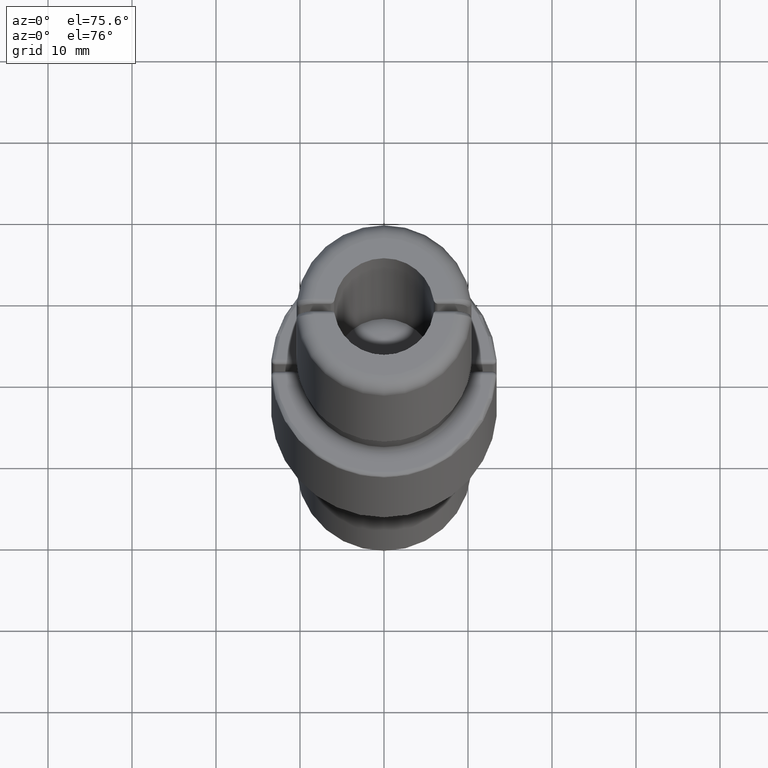
[diagram: clean part render]
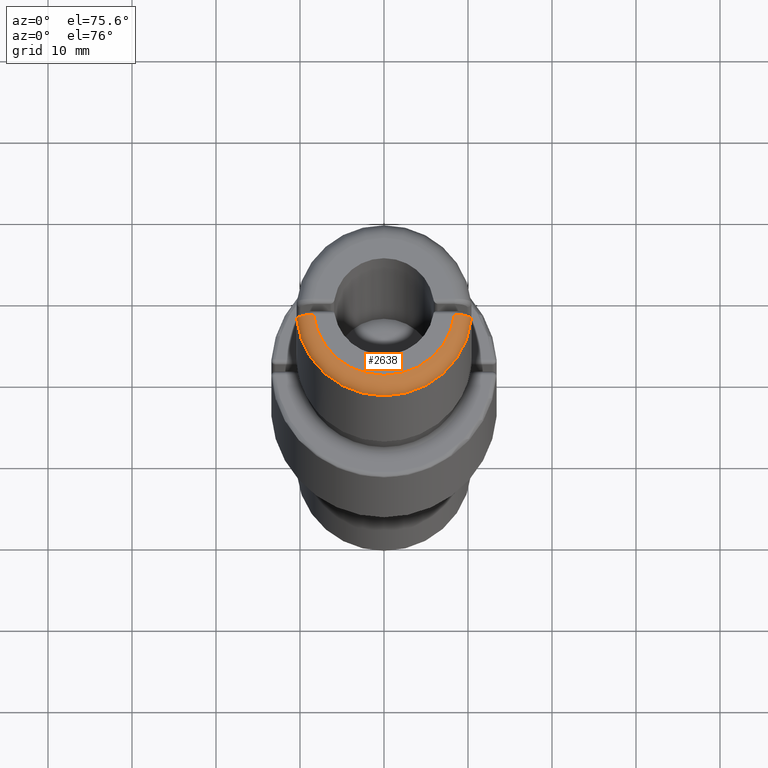
[diagram: same view with one face highlighted and labeled with its STEP entity id]
A machine part, auxiliary view. The second image highlights one B-rep face of the part: STEP entity #2638.
In plain terms, the highlighted toroidal blend (fillet) surface has major radius 8.45 mm and minor (blend) radius 2 mm.
Its self-contained STEP definition (entity closure, byte-faithful):
#121 = CARTESIAN_POINT ( 'NONE',  ( 10.13709992883444144, 0.5422776212763766868, -38.00248281879928669 ) ) ;
#376 = CARTESIAN_POINT ( 'NONE',  ( 8.266365894244642961E-17, -0.4500000000000007327, -39.00000000000000000 ) ) ;
#472 = DIRECTION ( 'NONE',  ( 0.000000000000000000, 0.000000000000000000, -1.000000000000000000 ) ) ;
#759 = EDGE_CURVE ( 'NONE', #1287, #1788, #1233, .T. ) ;
#823 = CARTESIAN_POINT ( 'NONE',  ( 9.991407245704108320, 0.5391767591802250070, -38.21991637100943962 ) ) ;
#1218 = VERTEX_POINT ( 'NONE', #4514 ) ;
#1227 = DIRECTION ( 'NONE',  ( -1.000000000000000000, 0.000000000000000000, 0.000000000000000000 ) ) ;
#1233 = CIRCLE ( 'NONE', #3471, 10.45000000000000107 ) ;
#1287 = VERTEX_POINT ( 'NONE', #2272 ) ;
#1556 = CARTESIAN_POINT ( 'NONE',  ( 10.40226021110595944, 0.5477386934673413865, -37.13226862518513371 ) ) ;
#1593 = CARTESIAN_POINT ( 'NONE',  ( 9.405567591796838656, 0.5260746935308584504, -38.74799332322648127 ) ) ;
#1788 = VERTEX_POINT ( 'NONE', #4784 ) ;
#2036 = B_SPLINE_CURVE_WITH_KNOTS ( 'NONE', 3,
 ( #3668, #7347, #9641, #2873, #8094, #7465, #6625, #2169, #2256, #3639, #8894, #8863, #2979, #5149, #9665, #7375 ),
 .UNSPECIFIED., .F., .F.,
 ( 4, 2, 2, 2, 2, 2, 2, 4 ),
 ( 0.000000000000000000, 0.0003911674859749285837, 0.0007823349719498571674, 0.001173502457924785643, 0.001564669943899714335, 0.001955837429874643027, 0.002347004915849571285, 0.003129339887799409154 ),
 .UNSPECIFIED. ) ;
#2062 = DIRECTION ( 'NONE',  ( -1.000000000000000000, 0.000000000000000000, 0.000000000000000000 ) ) ;
#2079 = EDGE_LOOP ( 'NONE', ( #9249, #5101, #8638, #7929 ) ) ;
#2169 = CARTESIAN_POINT ( 'NONE',  ( -9.617246823482815898, 0.5308961375033012242, -38.59236003019492500 ) ) ;
#2256 = CARTESIAN_POINT ( 'NONE',  ( -9.720534033555328080, 0.5332277416644402024, -38.50806794570836189 ) ) ;
#2272 = CARTESIAN_POINT ( 'NONE',  ( 10.40226021110595589, 0.5477386934673411645, -37.00000000000000000 ) ) ;
#2318 = CARTESIAN_POINT ( 'NONE',  ( 10.19877079261813968, 0.5435648520445219845, -37.88758289189765804 ) ) ;
#2353 = CARTESIAN_POINT ( 'NONE',  ( 8.923644222130960202, 0.5142340912886579352, -38.94715546227006087 ) ) ;
#2638 = ADVANCED_FACE ( 'NONE', ( #9280 ), #8569, .T. ) ;
#2873 = CARTESIAN_POINT ( 'NONE',  ( -8.914501645060827428, 0.5139158319877614733, -38.93653630709932401 ) ) ;
#2907 = EDGE_CURVE ( 'NONE', #1287, #1218, #4922, .T. ) ;
#2979 = CARTESIAN_POINT ( 'NONE',  ( -10.19828773064737248, 0.5435547484516506378, -37.88843861406774494 ) ) ;
#3471 = AXIS2_PLACEMENT_3D ( 'NONE', #5779, #3624, #2062 ) ;
#3624 = DIRECTION ( 'NONE',  ( -0.000000000000000000, -0.000000000000000000, 1.000000000000000000 ) ) ;
#3639 = CARTESIAN_POINT ( 'NONE',  ( -9.905752809253600688, 0.5373268412609994993, -38.32381766920933330 ) ) ;
#3668 = CARTESIAN_POINT ( 'NONE',  ( -8.396427811873333980, 0.5000000000000009992, -39.00000000000000000 ) ) ;
#3852 = CARTESIAN_POINT ( 'NONE',  ( 10.29956058583983314, 0.5456502124670018494, -37.64530602923584013 ) ) ;
#3946 = CARTESIAN_POINT ( 'NONE',  ( 10.38923390125260759, 0.5474760713952165903, -37.26232042752958051 ) ) ;
#4170 = EDGE_CURVE ( 'NONE', #5627, #1788, #2036, .T. ) ;
#4514 = CARTESIAN_POINT ( 'NONE',  ( 8.396427811873332203, 0.5000000000000039968, -39.00000000000000000 ) ) ;
#4590 = CARTESIAN_POINT ( 'NONE',  ( 10.33819775226147364, 0.5464382535937745144, -37.51817229397980924 ) ) ;
#4599 = EDGE_CURVE ( 'NONE', #5627, #1218, #5569, .T. ) ;
#4784 = CARTESIAN_POINT ( 'NONE',  ( -10.40226021110595589, 0.5477386934673379448, -37.00000000000000000 ) ) ;
#4922 = B_SPLINE_CURVE_WITH_KNOTS ( 'NONE', 3,
 ( #5323, #1556, #3946, #4590, #3852, #2318, #121, #823, #7521, #7655, #1593, #2353, #6890, #6760 ),
 .UNSPECIFIED., .F., .F.,
 ( 4, 2, 2, 2, 2, 2, 4 ),
 ( 0.000000000000000000, 0.0003911839619678441119, 0.0007823679239356882238, 0.001173551885903532281, 0.001564735847871376448, 0.002347103771807082778, 0.003129471695742789758 ),
 .UNSPECIFIED. ) ;
#4948 = DIRECTION ( 'NONE',  ( 0.000000000000000000, 0.000000000000000000, -1.000000000000000000 ) ) ;
#5101 = ORIENTED_EDGE ( 'NONE', *, *, #2907, .T. ) ;
#5149 = CARTESIAN_POINT ( 'NONE',  ( -10.34886309973565766, 0.5466705067420566388, -37.52739813044492223 ) ) ;
#5323 = CARTESIAN_POINT ( 'NONE',  ( 10.40226021110595589, 0.5477386934673411645, -37.00000000000000000 ) ) ;
#5569 = CIRCLE ( 'NONE', #6293, 8.450000000000001066 ) ;
#5627 = VERTEX_POINT ( 'NONE', #8683 ) ;
#5779 = CARTESIAN_POINT ( 'NONE',  ( 8.266365894244642961E-17, -0.4500000000000007327, -37.00000000000000000 ) ) ;
#5914 = AXIS2_PLACEMENT_3D ( 'NONE', #7886, #472, #7170 ) ;
#6293 = AXIS2_PLACEMENT_3D ( 'NONE', #376, #4948, #1227 ) ;
#6625 = CARTESIAN_POINT ( 'NONE',  ( -9.399376126463636183, 0.5258350552539476919, -38.73702256883465367 ) ) ;
#6760 = CARTESIAN_POINT ( 'NONE',  ( 8.396427811873332203, 0.5000000000000039968, -39.00000000000000000 ) ) ;
#6890 = CARTESIAN_POINT ( 'NONE',  ( 8.660837501091144475, 0.5074079257654416919, -39.00000000000000000 ) ) ;
#7170 = DIRECTION ( 'NONE',  ( -1.000000000000000000, 0.000000000000000000, 0.000000000000000000 ) ) ;
#7347 = CARTESIAN_POINT ( 'NONE',  ( -8.528645068714869382, 0.5037043106343402910, -39.00000000000000711 ) ) ;
#7375 = CARTESIAN_POINT ( 'NONE',  ( -10.40226021110595589, 0.5477386934673379448, -37.00000000000000000 ) ) ;
#7465 = CARTESIAN_POINT ( 'NONE',  ( -9.284273538295799710, 0.5230953751909435123, -38.79824586374527229 ) ) ;
#7521 = CARTESIAN_POINT ( 'NONE',  ( 9.906675794052421935, 0.5373469364321039610, -38.32276565992732031 ) ) ;
#7655 = CARTESIAN_POINT ( 'NONE',  ( 9.629155632256264141, 0.5312060925371040465, -38.59923402261257053 ) ) ;
#7886 = CARTESIAN_POINT ( 'NONE',  ( 8.266365894244642961E-17, -0.4500000000000007327, -37.00000000000000000 ) ) ;
#7929 = ORIENTED_EDGE ( 'NONE', *, *, #4170, .T. ) ;
#8094 = CARTESIAN_POINT ( 'NONE',  ( -9.041621709761473724, 0.5171319121803525931, -38.89827180944722329 ) ) ;
#8569 = TOROIDAL_SURFACE ( 'NONE', #5914, 8.450000000000001066, 2.000000000000000000 ) ;
#8638 = ORIENTED_EDGE ( 'NONE', *, *, #4599, .F. ) ;
#8683 = CARTESIAN_POINT ( 'NONE',  ( -8.396427811873333980, 0.5000000000000009992, -39.00000000000000000 ) ) ;
#8863 = CARTESIAN_POINT ( 'NONE',  ( -10.13568278837947290, 0.5422479291628420350, -38.00501158904389598 ) ) ;
#8894 = CARTESIAN_POINT ( 'NONE',  ( -9.988867564939393873, 0.5391222231356902483, -38.22328148923182312 ) ) ;
#9249 = ORIENTED_EDGE ( 'NONE', *, *, #759, .F. ) ;
#9280 = FACE_OUTER_BOUND ( 'NONE', #2079, .T. ) ;
#9641 = CARTESIAN_POINT ( 'NONE',  ( -8.658668187861424670, 0.5072177998209632666, -38.98709973841487653 ) ) ;
#9665 = CARTESIAN_POINT ( 'NONE',  ( -10.40226021110595234, 0.5477386934673373897, -37.26456340726964811 ) ) ;